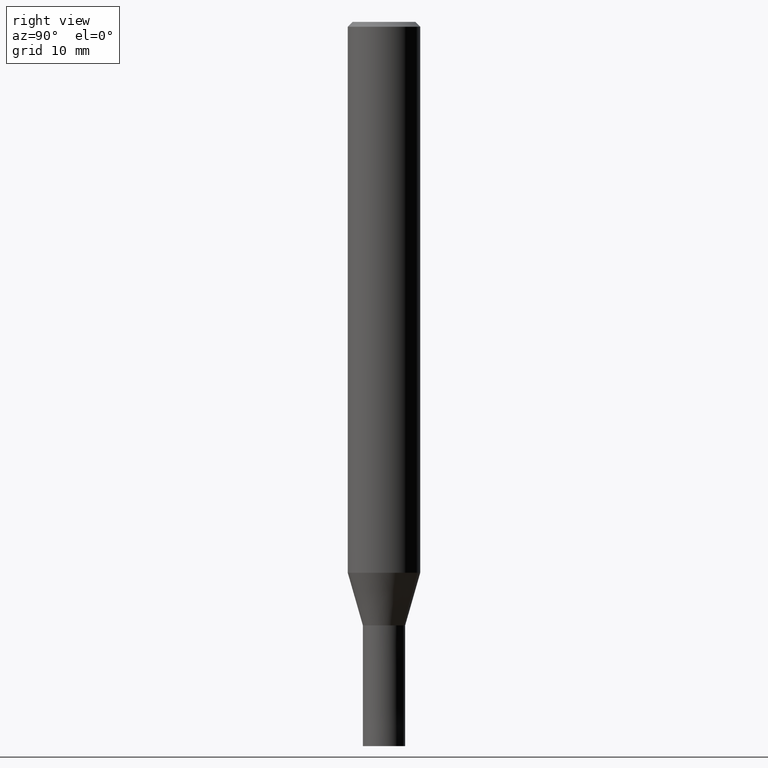
[diagram: clean part render]
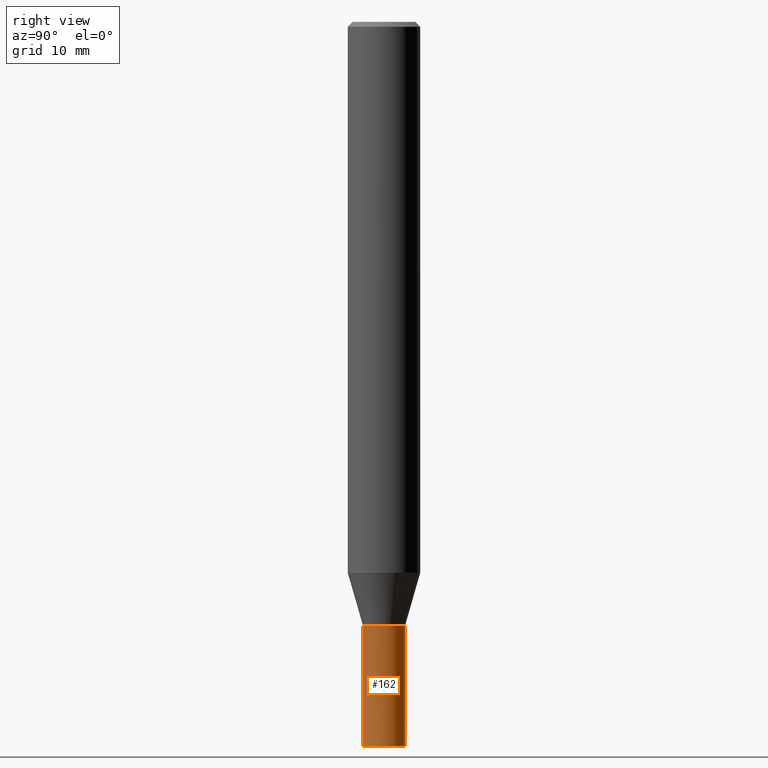
[diagram: same view with one face highlighted and labeled with its STEP entity id]
A machine part, right view. The second image highlights one B-rep face of the part: STEP entity #162.
In plain terms, the highlighted conical surface has half-angle 0.001 deg.
Its self-contained STEP definition (entity closure, byte-faithful):
#152=EDGE_CURVE('',#180,#174,#282,.T.);
#154=VERTEX_POINT('',#284);
#156=EDGE_CURVE('',#180,#154,#286,.T.);
#158=VERTEX_POINT('',#288);
#162=ADVANCED_FACE('',(#292),#293,.T.);
#170=EDGE_CURVE('',#174,#158,#302,.T.);
#172=EDGE_CURVE('',#158,#154,#304,.T.);
#174=VERTEX_POINT('',#306);
#180=VERTEX_POINT('',#312);
#282=LINE('',#429,#430);
#284=CARTESIAN_POINT('',(2.14293865855378E-016,-1.7499,-50.0));
#286=CIRCLE('',#435,1.7499);
#288=CARTESIAN_POINT('',(2.14306111918916E-016,-1.75,-60.0));
#292=FACE_OUTER_BOUND('',#440,.T.);
#293=CONICAL_SURFACE('',#441,1.74995,9.99999999966557E-006);
#302=CIRCLE('',#452,1.75);
#304=LINE('',#455,#456);
#306=CARTESIAN_POINT('',(0.0,1.75,-60.0));
#312=CARTESIAN_POINT('',(0.0,1.7499,-50.0));
#429=CARTESIAN_POINT('',(-2.14299988887147E-016,1.74995,-55.0));
#430=VECTOR('',#578,1.0);
#435=AXIS2_PLACEMENT_3D('',#579,#580,#581);
#440=EDGE_LOOP('',(#584,#585,#586,#587));
#441=AXIS2_PLACEMENT_3D('',#588,#589,#590);
#452=AXIS2_PLACEMENT_3D('',#602,#603,#604);
#455=CARTESIAN_POINT('',(2.14299988887147E-016,-1.74995,-55.0));
#456=VECTOR('',#605,1.0);
#578=DIRECTION('',(-1.22460635376101E-021,9.9999999994989E-006,-0.99999999995));
#579=CARTESIAN_POINT('',(0.0,0.0,-50.0));
#580=DIRECTION('',(0.0,0.0,-1.0));
#581=DIRECTION('',(0.0,1.0,0.0));
#584=ORIENTED_EDGE('',*,*,#152,.F.);
#585=ORIENTED_EDGE('',*,*,#156,.T.);
#586=ORIENTED_EDGE('',*,*,#172,.F.);
#587=ORIENTED_EDGE('',*,*,#170,.F.);
#588=CARTESIAN_POINT('',(0.0,0.0,-55.0));
#589=DIRECTION('',(0.0,-0.0,-1.0));
#590=DIRECTION('',(0.0,1.0,0.0));
#602=CARTESIAN_POINT('',(0.0,0.0,-60.0));
#603=DIRECTION('',(0.0,0.0,-1.0));
#604=DIRECTION('',(0.0,1.0,0.0));
#605=DIRECTION('',(-1.22460635376101E-021,9.9999999994989E-006,0.99999999995));